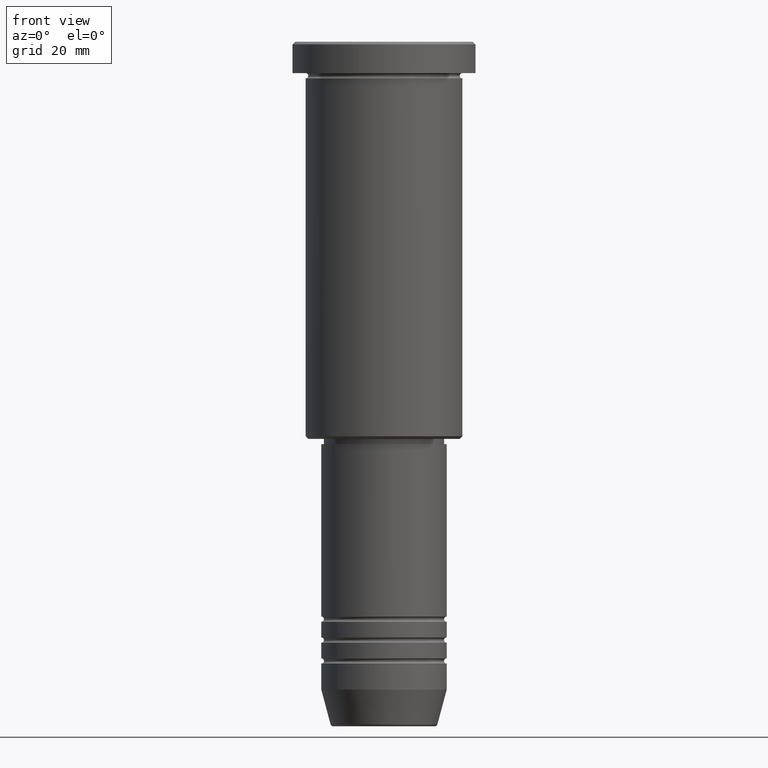
[diagram: clean part render]
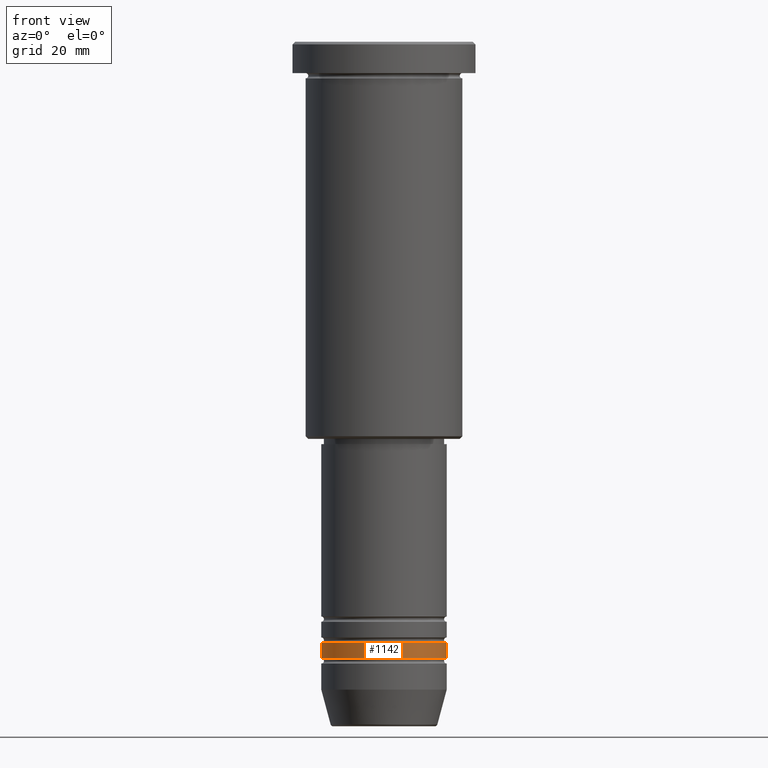
[diagram: same view with one face highlighted and labeled with its STEP entity id]
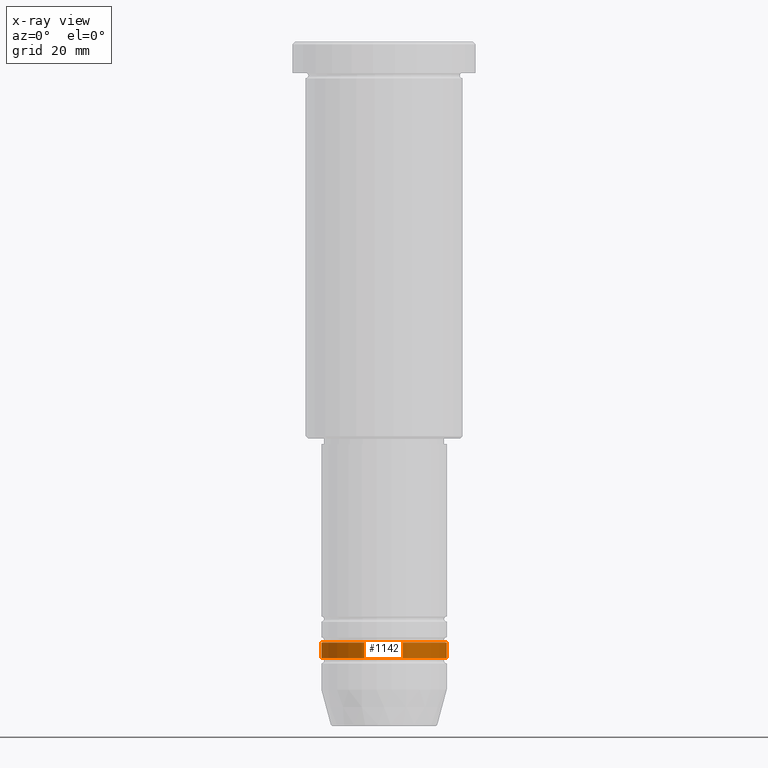
[diagram: x-ray of the same camera — body ghosted, the highlighted face saturated]
A machine part, front view. The second image highlights one B-rep face of the part: STEP entity #1142.
The next image is the same camera in x-ray: the body ghosted, the highlighted face saturated — about 0% of this face is hidden behind the body in this view.
In plain terms, the highlighted cylindrical surface (partial cylindrical patch) has radius 12 mm, axis along (-0, -0, 1).
Its self-contained STEP definition (entity closure, byte-faithful):
#14 = CIRCLE ( 'NONE', #193, 12.00000000000000000 ) ;
#26 = CIRCLE ( 'NONE', #1172, 12.00000000000000000 ) ;
#99 = EDGE_LOOP ( 'NONE', ( #1014, #536, #801, #424 ) ) ;
#131 = LINE ( 'NONE', #204, #497 ) ;
#188 = DIRECTION ( 'NONE',  ( 1.000000000000000000, 0.000000000000000000, 0.000000000000000000 ) ) ;
#193 = AXIS2_PLACEMENT_3D ( 'NONE', #899, #380, #261 ) ;
#197 = EDGE_CURVE ( 'NONE', #1140, #317, #26, .T. ) ;
#204 = CARTESIAN_POINT ( 'NONE',  ( -12.00000000000000000, 1.469576158976823947E-15, 0.000000000000000000 ) ) ;
#261 = DIRECTION ( 'NONE',  ( 1.000000000000000000, 0.000000000000000000, 0.000000000000000000 ) ) ;
#262 = EDGE_CURVE ( 'NONE', #317, #378, #595, .T. ) ;
#265 = FACE_OUTER_BOUND ( 'NONE', #99, .T. ) ;
#317 = VERTEX_POINT ( 'NONE', #780 ) ;
#340 = VERTEX_POINT ( 'NONE', #691 ) ;
#378 = VERTEX_POINT ( 'NONE', #630 ) ;
#380 = DIRECTION ( 'NONE',  ( -0.000000000000000000, -0.000000000000000000, 1.000000000000000000 ) ) ;
#424 = ORIENTED_EDGE ( 'NONE', *, *, #837, .F. ) ;
#438 = VECTOR ( 'NONE', #607, 1000.000000000000000 ) ;
#497 = VECTOR ( 'NONE', #678, 1000.000000000000000 ) ;
#536 = ORIENTED_EDGE ( 'NONE', *, *, #197, .T. ) ;
#579 = CARTESIAN_POINT ( 'NONE',  ( -12.00000000000000000, 1.469576158976823947E-15, -117.9999999999998863 ) ) ;
#595 = LINE ( 'NONE', #1045, #438 ) ;
#607 = DIRECTION ( 'NONE',  ( -0.000000000000000000, -0.000000000000000000, 1.000000000000000000 ) ) ;
#630 = CARTESIAN_POINT ( 'NONE',  ( 12.00000000000000000, 0.000000000000000000, -114.9999999999998863 ) ) ;
#643 = DIRECTION ( 'NONE',  ( 1.000000000000000000, 0.000000000000000000, 0.000000000000000000 ) ) ;
#678 = DIRECTION ( 'NONE',  ( -0.000000000000000000, -0.000000000000000000, 1.000000000000000000 ) ) ;
#691 = CARTESIAN_POINT ( 'NONE',  ( -12.00000000000000000, 1.469576158976823947E-15, -114.9999999999998863 ) ) ;
#746 = DIRECTION ( 'NONE',  ( -0.000000000000000000, -0.000000000000000000, 1.000000000000000000 ) ) ;
#757 = DIRECTION ( 'NONE',  ( -0.000000000000000000, -0.000000000000000000, 1.000000000000000000 ) ) ;
#780 = CARTESIAN_POINT ( 'NONE',  ( 12.00000000000000000, 0.000000000000000000, -117.9999999999998863 ) ) ;
#801 = ORIENTED_EDGE ( 'NONE', *, *, #262, .T. ) ;
#837 = EDGE_CURVE ( 'NONE', #340, #378, #14, .T. ) ;
#846 = CARTESIAN_POINT ( 'NONE',  ( 0.000000000000000000, 0.000000000000000000, -117.9999999999998863 ) ) ;
#899 = CARTESIAN_POINT ( 'NONE',  ( 0.000000000000000000, 0.000000000000000000, -114.9999999999998863 ) ) ;
#913 = CARTESIAN_POINT ( 'NONE',  ( 0.000000000000000000, 0.000000000000000000, 0.000000000000000000 ) ) ;
#924 = CYLINDRICAL_SURFACE ( 'NONE', #1024, 12.00000000000000000 ) ;
#1014 = ORIENTED_EDGE ( 'NONE', *, *, #1181, .F. ) ;
#1024 = AXIS2_PLACEMENT_3D ( 'NONE', #913, #746, #643 ) ;
#1045 = CARTESIAN_POINT ( 'NONE',  ( 12.00000000000000000, 0.000000000000000000, 0.000000000000000000 ) ) ;
#1140 = VERTEX_POINT ( 'NONE', #579 ) ;
#1142 = ADVANCED_FACE ( 'NONE', ( #265 ), #924, .T. ) ;
#1172 = AXIS2_PLACEMENT_3D ( 'NONE', #846, #757, #188 ) ;
#1181 = EDGE_CURVE ( 'NONE', #1140, #340, #131, .T. ) ;